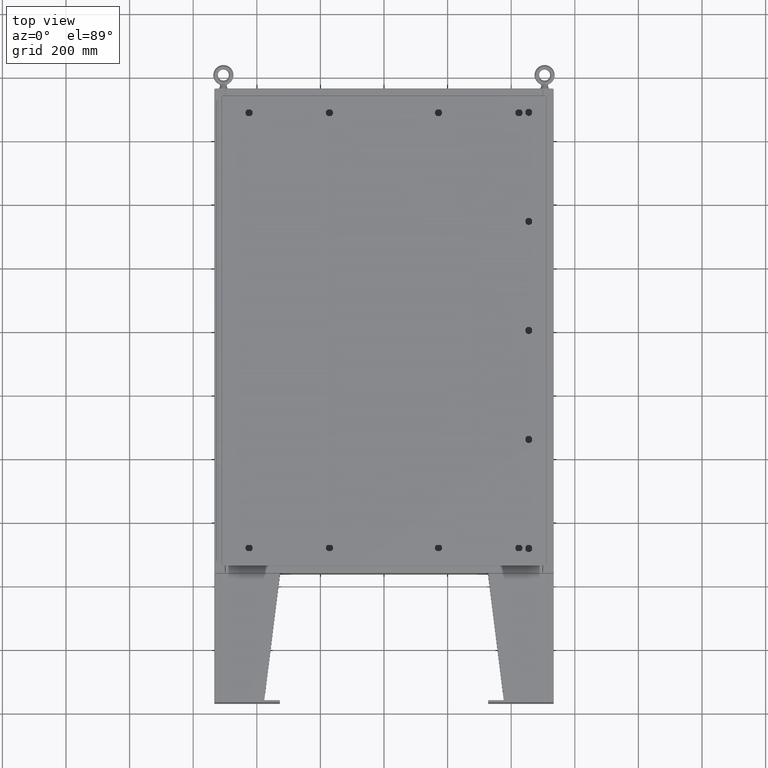
[diagram: clean part render]
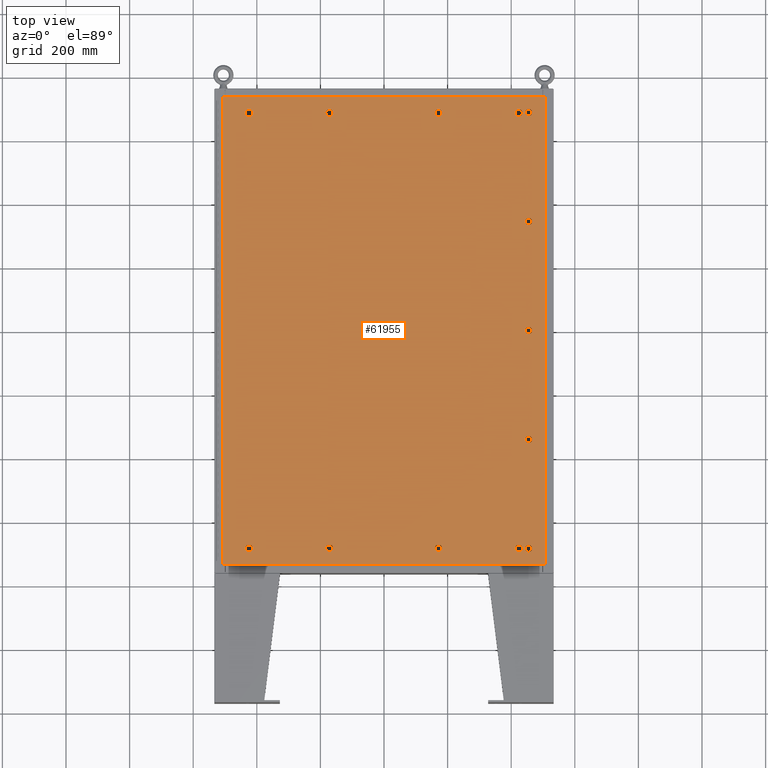
[diagram: same view with one face highlighted and labeled with its STEP entity id]
A machine part, top view. The second image highlights one B-rep face of the part: STEP entity #61955.
In plain terms, the highlighted planar face has unit normal (0, 0, -1).
Its self-contained STEP definition (entity closure, byte-faithful):
#31 = DIRECTION ( 'NONE',  ( 1.000000000000000000, 0.0000000000000000000, -6.982962677686286400E-015 ) ) ;
#73 = VECTOR ( 'NONE', #59801, 39.37007874015748100 ) ;
#134 = CARTESIAN_POINT ( 'NONE',  ( -6.550547624732094400, 27.33929999999999400, 0.0000000000000000000 ) ) ;
#354 = CIRCLE ( 'NONE', #49731, 0.4424999999999972800 ) ;
#451 = CARTESIAN_POINT ( 'NONE',  ( -6.550547624732101500, 26.54930000000000600, 0.0000000000000000000 ) ) ;
#564 = VERTEX_POINT ( 'NONE', #9848 ) ;
#716 = AXIS2_PLACEMENT_3D ( 'NONE', #22207, #7557, #37631 ) ;
#793 = CARTESIAN_POINT ( 'NONE',  ( 17.92830000000001400, -13.50000000000001800, -9.426999614876466400E-014 ) ) ;
#848 = VERTEX_POINT ( 'NONE', #5395 ) ;
#951 = EDGE_CURVE ( 'NONE', #62832, #12803, #57757, .T. ) ;
#1049 = CARTESIAN_POINT ( 'NONE',  ( 16.50354762473211100, -26.54930000000000200, -7.914855633430561400E-015 ) ) ;
#1050 = FACE_BOUND ( 'NONE', #35290, .T. ) ;
#1119 = VERTEX_POINT ( 'NONE', #36354 ) ;
#1125 = EDGE_LOOP ( 'NONE', ( #43125, #59571, #39557, #12998 ) ) ;
#1366 = CARTESIAN_POINT ( 'NONE',  ( 16.90245237526787700, 26.54930000000001300, -2.442441496082410700E-013 ) ) ;
#1477 = LINE ( 'NONE', #48759, #51638 ) ;
#1686 = ORIENTED_EDGE ( 'NONE', *, *, #50633, .F. ) ;
#1808 = DIRECTION ( 'NONE',  ( 6.982962677686266700E-015, -0.0000000000000000000, 1.000000000000000000 ) ) ;
#1966 = EDGE_CURVE ( 'NONE', #42191, #13647, #47000, .T. ) ;
#1978 = CARTESIAN_POINT ( 'NONE',  ( -16.50354762473210700, -26.54930000000001700, -2.493734682567286400E-013 ) ) ;
#1998 = DIRECTION ( 'NONE',  ( 0.0000000000000000000, 0.0000000000000000000, 1.000000000000000000 ) ) ;
#2025 = CARTESIAN_POINT ( 'NONE',  ( 18.32330000000001400, -27.19945237526789600, -1.899327607900007900E-013 ) ) ;
#2268 = VERTEX_POINT ( 'NONE', #51708 ) ;
#2348 = DIRECTION ( 'NONE',  ( -1.000000000000000000, -0.0000000000000000000, -6.982962677686306200E-015 ) ) ;
#2470 = CARTESIAN_POINT ( 'NONE',  ( 18.32330000000000700, 0.1994523752679009100, 0.0000000000000000000 ) ) ;
#2684 = DIRECTION ( 'NONE',  ( 1.000000000000000000, -1.095739467627835000E-014, 6.982962677686171300E-015 ) ) ;
#2689 = CARTESIAN_POINT ( 'NONE',  ( -6.550547624732104200, -26.54930000000000200, -2.493734682567286900E-013 ) ) ;
#2694 = EDGE_CURVE ( 'NONE', #32877, #36378, #21070, .T. ) ;
#2735 = DIRECTION ( 'NONE',  ( 1.000000000000000000, 0.0000000000000000000, 6.982962677686287200E-015 ) ) ;
#2740 = LINE ( 'NONE', #23070, #39998 ) ;
#2799 = VERTEX_POINT ( 'NONE', #37909 ) ;
#2837 = CARTESIAN_POINT ( 'NONE',  ( -16.70299999999999600, 26.94430000000000200, 0.0000000000000000000 ) ) ;
#2915 = DIRECTION ( 'NONE',  ( 0.0000000000000000000, 1.000000000000000000, 6.982962677686270700E-015 ) ) ;
#3237 = AXIS2_PLACEMENT_3D ( 'NONE', #4733, #38786, #9599 ) ;
#3853 = ORIENTED_EDGE ( 'NONE', *, *, #60614, .F. ) ;
#3855 = VERTEX_POINT ( 'NONE', #33629 ) ;
#3858 = VERTEX_POINT ( 'NONE', #9414 ) ;
#3881 = CARTESIAN_POINT ( 'NONE',  ( 17.92830000000001100, 13.50000000000001800, 0.0000000000000000000 ) ) ;
#3895 = DIRECTION ( 'NONE',  ( -0.0000000000000000000, -6.982962677686266700E-015, 1.000000000000000000 ) ) ;
#3927 = CIRCLE ( 'NONE', #53049, 0.4424999999999983400 ) ;
#3962 = DIRECTION ( 'NONE',  ( 1.000000000000000000, 0.0000000000000000000, 6.982962677686271400E-015 ) ) ;
#3986 = DIRECTION ( 'NONE',  ( 1.000000000000000000, 0.0000000000000000000, 6.982962677686287200E-015 ) ) ;
#4075 = CARTESIAN_POINT ( 'NONE',  ( -16.50354762473209600, -27.33930000000000500, -2.548900087721006900E-013 ) ) ;
#4145 = DIRECTION ( 'NONE',  ( 1.000000000000000000, 0.0000000000000000000, 0.0000000000000000000 ) ) ;
#4268 = EDGE_CURVE ( 'NONE', #27062, #49791, #46050, .T. ) ;
#4331 = AXIS2_PLACEMENT_3D ( 'NONE', #37043, #7891, #41941 ) ;
#4384 = ORIENTED_EDGE ( 'NONE', *, *, #6686, .F. ) ;
#4436 = DIRECTION ( 'NONE',  ( 1.000000000000000000, -1.095739467627832000E-014, 6.982962677686152300E-015 ) ) ;
#4647 = CIRCLE ( 'NONE', #61645, 0.4424999999999972800 ) ;
#4654 = CARTESIAN_POINT ( 'NONE',  ( -6.550547624732095300, 27.33929999999999400, 0.0000000000000000000 ) ) ;
#4682 = ORIENTED_EDGE ( 'NONE', *, *, #55266, .F. ) ;
#4733 = CARTESIAN_POINT ( 'NONE',  ( 17.92830000000001800, -27.00000000000001400, -1.885399922975292500E-013 ) ) ;
#4863 = ORIENTED_EDGE ( 'NONE', *, *, #26304, .F. ) ;
#4882 = CARTESIAN_POINT ( 'NONE',  ( -6.550547624732104200, -26.54930000000000200, -2.493734682567286900E-013 ) ) ;
#5322 = VECTOR ( 'NONE', #4436, 39.37007874015748100 ) ;
#5352 = VERTEX_POINT ( 'NONE', #23470 ) ;
#5395 = CARTESIAN_POINT ( 'NONE',  ( -6.949452375267867400, 27.33930000000000100, 0.0000000000000000000 ) ) ;
#5593 = DIRECTION ( 'NONE',  ( 0.0000000000000000000, 1.000000000000000000, 6.982962677686270700E-015 ) ) ;
#5712 = CARTESIAN_POINT ( 'NONE',  ( 18.32330000000000700, 13.69945237526790100, 0.0000000000000000000 ) ) ;
#5721 = ORIENTED_EDGE ( 'NONE', *, *, #55268, .F. ) ;
#5820 = CIRCLE ( 'NONE', #3237, 0.4424999999999983400 ) ;
#5998 = VECTOR ( 'NONE', #17151, 39.37007874015748100 ) ;
#6056 = CIRCLE ( 'NONE', #9088, 0.4424999999999972800 ) ;
#6201 = CARTESIAN_POINT ( 'NONE',  ( 16.50354762473211100, -26.54930000000000200, -7.914855633430561400E-015 ) ) ;
#6373 = EDGE_CURVE ( 'NONE', #15367, #3855, #60715, .T. ) ;
#6390 = CARTESIAN_POINT ( 'NONE',  ( -16.90245237526787400, -26.54930000000001700, -2.493734682567285900E-013 ) ) ;
#6521 = EDGE_CURVE ( 'NONE', #3855, #2799, #37093, .T. ) ;
#6637 = LINE ( 'NONE', #2689, #42433 ) ;
#6686 = EDGE_CURVE ( 'NONE', #8292, #19901, #16469, .T. ) ;
#6689 = AXIS2_PLACEMENT_3D ( 'NONE', #13486, #52058, #46570 ) ;
#7187 = EDGE_LOOP ( 'NONE', ( #35276, #55929, #39106, #48168, #7913 ) ) ;
#7334 = ORIENTED_EDGE ( 'NONE', *, *, #6521, .F. ) ;
#7370 = VERTEX_POINT ( 'NONE', #5712 ) ;
#7512 = CIRCLE ( 'NONE', #42924, 0.4424999999999983400 ) ;
#7557 = DIRECTION ( 'NONE',  ( -6.982962677686266700E-015, -6.982962677686266700E-015, 1.000000000000000000 ) ) ;
#7605 = AXIS2_PLACEMENT_3D ( 'NONE', #61094, #51493, #22315 ) ;
#7695 = DIRECTION ( 'NONE',  ( 1.000000000000000000, 0.0000000000000000000, 0.0000000000000000000 ) ) ;
#7800 = CARTESIAN_POINT ( 'NONE',  ( -19.99030000000001600, -29.00629999999999600, 1.946441695485787500E-015 ) ) ;
#7807 = VERTEX_POINT ( 'NONE', #13652 ) ;
#7821 = CARTESIAN_POINT ( 'NONE',  ( 17.53330000000001500, 26.80054762473213300, 0.0000000000000000000 ) ) ;
#7891 = DIRECTION ( 'NONE',  ( 6.982962677686266700E-015, -0.0000000000000000000, 1.000000000000000000 ) ) ;
#7913 = ORIENTED_EDGE ( 'NONE', *, *, #61966, .F. ) ;
#7926 = EDGE_CURVE ( 'NONE', #28776, #11582, #35377, .T. ) ;
#8030 = EDGE_CURVE ( 'NONE', #12054, #32877, #40705, .T. ) ;
#8167 = EDGE_CURVE ( 'NONE', #40309, #61084, #57408, .T. ) ;
#8187 = VERTEX_POINT ( 'NONE', #2470 ) ;
#8292 = VERTEX_POINT ( 'NONE', #55355 ) ;
#8302 = LINE ( 'NONE', #134, #19703 ) ;
#8472 = CARTESIAN_POINT ( 'NONE',  ( -6.949452375267869200, -27.33929999999999400, 0.0000000000000000000 ) ) ;
#8519 = VECTOR ( 'NONE', #43911, 39.37007874015748100 ) ;
#8569 = EDGE_LOOP ( 'NONE', ( #44231, #60132, #60616, #8687, #50456 ) ) ;
#8620 = DIRECTION ( 'NONE',  ( 6.982962677686266700E-015, -0.0000000000000000000, 1.000000000000000000 ) ) ;
#8627 = EDGE_CURVE ( 'NONE', #12122, #3858, #8638, .T. ) ;
#8638 = LINE ( 'NONE', #25091, #32981 ) ;
#8687 = ORIENTED_EDGE ( 'NONE', *, *, #59174, .F. ) ;
#8738 = DIRECTION ( 'NONE',  ( 1.000000000000000000, 0.0000000000000000000, 0.0000000000000000000 ) ) ;
#8776 = CARTESIAN_POINT ( 'NONE',  ( 17.53330000000002200, 13.69945237526790600, 0.0000000000000000000 ) ) ;
#8802 = DIRECTION ( 'NONE',  ( -1.000000000000000000, -0.0000000000000000000, -6.982962677686265900E-015 ) ) ;
#8859 = ORIENTED_EDGE ( 'NONE', *, *, #56245, .F. ) ;
#8874 = CARTESIAN_POINT ( 'NONE',  ( -6.749999999999985800, 26.94430000000000200, 0.0000000000000000000 ) ) ;
#9088 = AXIS2_PLACEMENT_3D ( 'NONE', #39620, #10446, #44537 ) ;
#9335 = EDGE_CURVE ( 'NONE', #34380, #26029, #30611, .T. ) ;
#9414 = CARTESIAN_POINT ( 'NONE',  ( -19.99030000000001600, 29.00630000000000700, 8.485802830319618300E-015 ) ) ;
#9469 = EDGE_CURVE ( 'NONE', #59648, #19207, #21433, .T. ) ;
#9599 = DIRECTION ( 'NONE',  ( 0.0000000000000000000, 1.000000000000000000, 6.982962677686270700E-015 ) ) ;
#9785 = CARTESIAN_POINT ( 'NONE',  ( 18.32330000000001000, -13.69945237526790100, -9.566276464123617700E-014 ) ) ;
#9848 = CARTESIAN_POINT ( 'NONE',  ( 17.14549999999999100, -26.94429999999999800, -6.190396413768948300E-015 ) ) ;
#10222 = VECTOR ( 'NONE', #46797, 39.37007874015748100 ) ;
#10270 = CIRCLE ( 'NONE', #21499, 0.4424999999999983400 ) ;
#10295 = CIRCLE ( 'NONE', #41715, 0.4424999999999983400 ) ;
#10338 = EDGE_CURVE ( 'NONE', #52823, #27134, #40400, .T. ) ;
#10446 = DIRECTION ( 'NONE',  ( 0.0000000000000000000, 0.0000000000000000000, 1.000000000000000000 ) ) ;
#10645 = CIRCLE ( 'NONE', #33852, 0.4424999999999983400 ) ;
#10837 = FACE_BOUND ( 'NONE', #13703, .T. ) ;
#10909 = ORIENTED_EDGE ( 'NONE', *, *, #31318, .F. ) ;
#11216 = EDGE_CURVE ( 'NONE', #51626, #62779, #44898, .T. ) ;
#11512 = CARTESIAN_POINT ( 'NONE',  ( 17.53330000000002200, -13.69945237526790600, -9.566276464123621500E-014 ) ) ;
#11582 = VERTEX_POINT ( 'NONE', #1049 ) ;
#11735 = VERTEX_POINT ( 'NONE', #7821 ) ;
#11876 = LINE ( 'NONE', #47650, #23273 ) ;
#11944 = AXIS2_PLACEMENT_3D ( 'NONE', #31095, #1998, #36017 ) ;
#11957 = EDGE_LOOP ( 'NONE', ( #17026, #23275, #38411, #29812 ) ) ;
#12054 = VERTEX_POINT ( 'NONE', #57978 ) ;
#12122 = VERTEX_POINT ( 'NONE', #30512 ) ;
#12355 = FACE_BOUND ( 'NONE', #14223, .T. ) ;
#12628 = VERTEX_POINT ( 'NONE', #2025 ) ;
#12803 = VERTEX_POINT ( 'NONE', #13012 ) ;
#12856 = ORIENTED_EDGE ( 'NONE', *, *, #53538, .F. ) ;
#12998 = ORIENTED_EDGE ( 'NONE', *, *, #25890, .F. ) ;
#13012 = CARTESIAN_POINT ( 'NONE',  ( 19.99030000000000100, -29.00629999999998900, 1.946441695485787500E-015 ) ) ;
#13016 = ORIENTED_EDGE ( 'NONE', *, *, #951, .T. ) ;
#13045 = VERTEX_POINT ( 'NONE', #30114 ) ;
#13060 = DIRECTION ( 'NONE',  ( 0.0000000000000000000, 1.000000000000000000, 0.0000000000000000000 ) ) ;
#13180 = EDGE_LOOP ( 'NONE', ( #29881, #42140, #4863, #7334 ) ) ;
#13196 = CARTESIAN_POINT ( 'NONE',  ( 16.90245237526787700, -26.54930000000000200, 0.0000000000000000000 ) ) ;
#13210 = EDGE_CURVE ( 'NONE', #36378, #7370, #52548, .T. ) ;
#13390 = AXIS2_PLACEMENT_3D ( 'NONE', #38799, #14182, #39835 ) ;
#13471 = CARTESIAN_POINT ( 'NONE',  ( -6.307499999999988600, 26.94430000000000200, 0.0000000000000000000 ) ) ;
#13486 = CARTESIAN_POINT ( 'NONE',  ( -6.749999999999987600, -26.94429999999999800, -2.521317385144146900E-013 ) ) ;
#13636 = AXIS2_PLACEMENT_3D ( 'NONE', #37762, #8620, #42669 ) ;
#13647 = VERTEX_POINT ( 'NONE', #54728 ) ;
#13652 = CARTESIAN_POINT ( 'NONE',  ( 16.50354762473210000, 27.33930000000000100, -2.414586126232980000E-013 ) ) ;
#13703 = EDGE_LOOP ( 'NONE', ( #14204, #15776, #59709, #60749, #42330 ) ) ;
#13788 = DIRECTION ( 'NONE',  ( 1.000000000000000000, 0.0000000000000000000, 0.0000000000000000000 ) ) ;
#13796 = LINE ( 'NONE', #451, #62523 ) ;
#13869 = VERTEX_POINT ( 'NONE', #27550 ) ;
#13899 = FACE_BOUND ( 'NONE', #46470, .T. ) ;
#14065 = EDGE_LOOP ( 'NONE', ( #53230, #31671, #30118, #21475, #29088 ) ) ;
#14182 = DIRECTION ( 'NONE',  ( 6.982962677686266700E-015, -0.0000000000000000000, 1.000000000000000000 ) ) ;
#14204 = ORIENTED_EDGE ( 'NONE', *, *, #26970, .F. ) ;
#14223 = EDGE_LOOP ( 'NONE', ( #52039, #54199, #12856, #1686, #4682 ) ) ;
#14327 = CARTESIAN_POINT ( 'NONE',  ( 17.53330000000001500, 13.30054762473213400, 0.0000000000000000000 ) ) ;
#14698 = CIRCLE ( 'NONE', #52874, 0.4424999999999961700 ) ;
#15061 = CARTESIAN_POINT ( 'NONE',  ( 17.92830000000001100, 1.529834876451990400E-014, 0.0000000000000000000 ) ) ;
#15197 = ORIENTED_EDGE ( 'NONE', *, *, #13210, .F. ) ;
#15271 = CARTESIAN_POINT ( 'NONE',  ( -16.26049999999999700, 26.94430000000000200, 0.0000000000000000000 ) ) ;
#15298 = VERTEX_POINT ( 'NONE', #27766 ) ;
#15367 = VERTEX_POINT ( 'NONE', #21593 ) ;
#15388 = VERTEX_POINT ( 'NONE', #4654 ) ;
#15398 = VERTEX_POINT ( 'NONE', #29716 ) ;
#15410 = FACE_BOUND ( 'NONE', #1125, .T. ) ;
#15515 = VERTEX_POINT ( 'NONE', #32740 ) ;
#15623 = DIRECTION ( 'NONE',  ( 0.0000000000000000000, 0.0000000000000000000, 1.000000000000000000 ) ) ;
#15741 = CIRCLE ( 'NONE', #716, 0.4424999999999983400 ) ;
#15776 = ORIENTED_EDGE ( 'NONE', *, *, #51635, .F. ) ;
#15785 = AXIS2_PLACEMENT_3D ( 'NONE', #27240, #43215, #21768 ) ;
#15833 = ORIENTED_EDGE ( 'NONE', *, *, #46270, .F. ) ;
#15898 = EDGE_CURVE ( 'NONE', #564, #28776, #33272, .T. ) ;
#15962 = EDGE_CURVE ( 'NONE', #11582, #16928, #15741, .T. ) ;
#15970 = VERTEX_POINT ( 'NONE', #35894 ) ;
#16268 = CARTESIAN_POINT ( 'NONE',  ( 16.70299999999999600, -26.94429999999999800, -9.280357398645096400E-015 ) ) ;
#16444 = CARTESIAN_POINT ( 'NONE',  ( -16.50354762473211100, 26.54930000000000600, 0.0000000000000000000 ) ) ;
#16469 = CIRCLE ( 'NONE', #6689, 0.4424999999999983400 ) ;
#16573 = DIRECTION ( 'NONE',  ( -1.000000000000000000, 0.0000000000000000000, 7.785697190086082800E-029 ) ) ;
#16699 = CIRCLE ( 'NONE', #21449, 0.4424999999999983400 ) ;
#16822 = EDGE_CURVE ( 'NONE', #8187, #19752, #47657, .T. ) ;
#16928 = VERTEX_POINT ( 'NONE', #53358 ) ;
#17009 = CARTESIAN_POINT ( 'NONE',  ( 6.550547624732101500, 26.54930000000000600, -4.574222958191072400E-014 ) ) ;
#17026 = ORIENTED_EDGE ( 'NONE', *, *, #36077, .F. ) ;
#17036 = EDGE_CURVE ( 'NONE', #12803, #12122, #23979, .T. ) ;
#17104 = DIRECTION ( 'NONE',  ( 0.0000000000000000000, 1.000000000000000000, 6.982962677686270700E-015 ) ) ;
#17151 = DIRECTION ( 'NONE',  ( 1.000000000000000000, -0.0000000000000000000, -0.0000000000000000000 ) ) ;
#17251 = EDGE_CURVE ( 'NONE', #49131, #2268, #10270, .T. ) ;
#17305 = ORIENTED_EDGE ( 'NONE', *, *, #53329, .T. ) ;
#17571 = EDGE_CURVE ( 'NONE', #11735, #15367, #58190, .T. ) ;
#17576 = VECTOR ( 'NONE', #16573, 39.37007874015748100 ) ;
#17643 = VECTOR ( 'NONE', #8802, 39.37007874015748100 ) ;
#17795 = ORIENTED_EDGE ( 'NONE', *, *, #46749, .F. ) ;
#17891 = ORIENTED_EDGE ( 'NONE', *, *, #8030, .F. ) ;
#17971 = DIRECTION ( 'NONE',  ( -0.0000000000000000000, -6.982962677686266700E-015, 1.000000000000000000 ) ) ;
#17980 = CARTESIAN_POINT ( 'NONE',  ( 17.92830000000001800, -27.00000000000001400, -1.885399922975292500E-013 ) ) ;
#18120 = DIRECTION ( 'NONE',  ( 1.000000000000000000, 0.0000000000000000000, 0.0000000000000000000 ) ) ;
#18155 = EDGE_CURVE ( 'NONE', #15970, #47408, #50536, .T. ) ;
#18465 = DIRECTION ( 'NONE',  ( 0.0000000000000000000, 0.0000000000000000000, 1.000000000000000000 ) ) ;
#18856 = CARTESIAN_POINT ( 'NONE',  ( 19.99030000000000100, -29.00629999999998900, 1.946441695485787500E-015 ) ) ;
#19207 = VERTEX_POINT ( 'NONE', #42318 ) ;
#19494 = CARTESIAN_POINT ( 'NONE',  ( 17.53330000000002200, 27.19945237526790300, 0.0000000000000000000 ) ) ;
#19703 = VECTOR ( 'NONE', #43191, 39.37007874015748100 ) ;
#19752 = VERTEX_POINT ( 'NONE', #50363 ) ;
#19901 = VERTEX_POINT ( 'NONE', #21531 ) ;
#19909 = LINE ( 'NONE', #38995, #29782 ) ;
#20214 = CARTESIAN_POINT ( 'NONE',  ( 18.32330000000000700, 27.19945237526789600, 0.0000000000000000000 ) ) ;
#20243 = DIRECTION ( 'NONE',  ( -1.095739467627836100E-014, -1.000000000000000000, 0.0000000000000000000 ) ) ;
#20608 = CARTESIAN_POINT ( 'NONE',  ( -6.550547624732096200, -27.33929999999999100, -2.548900087721007400E-013 ) ) ;
#20832 = EDGE_CURVE ( 'NONE', #19901, #53764, #37508, .T. ) ;
#20878 = ORIENTED_EDGE ( 'NONE', *, *, #17036, .T. ) ;
#21025 = CARTESIAN_POINT ( 'NONE',  ( -16.90245237526787700, 26.54930000000000600, 0.0000000000000000000 ) ) ;
#21070 = CIRCLE ( 'NONE', #25217, 0.4424999999999983400 ) ;
#21433 = LINE ( 'NONE', #9785, #8519 ) ;
#21442 = EDGE_CURVE ( 'NONE', #60164, #564, #47336, .T. ) ;
#21449 = AXIS2_PLACEMENT_3D ( 'NONE', #793, #34731, #5593 ) ;
#21475 = ORIENTED_EDGE ( 'NONE', *, *, #27828, .F. ) ;
#21499 = AXIS2_PLACEMENT_3D ( 'NONE', #55459, #32965, #62428 ) ;
#21531 = CARTESIAN_POINT ( 'NONE',  ( -6.307499999999990300, -26.94429999999999800, -2.521317385144146900E-013 ) ) ;
#21544 = EDGE_CURVE ( 'NONE', #53498, #13869, #3927, .T. ) ;
#21593 = CARTESIAN_POINT ( 'NONE',  ( 18.32330000000001000, 26.80054762473213300, 0.0000000000000000000 ) ) ;
#21679 = EDGE_CURVE ( 'NONE', #59891, #25282, #61007, .T. ) ;
#21768 = DIRECTION ( 'NONE',  ( -1.000000000000000000, 0.0000000000000000000, 6.982962677686304600E-015 ) ) ;
#21845 = EDGE_CURVE ( 'NONE', #26029, #38044, #4647, .T. ) ;
#22071 = CIRCLE ( 'NONE', #56557, 0.4424999999999961700 ) ;
#22127 = CARTESIAN_POINT ( 'NONE',  ( 16.50354762473211100, 26.54930000000001300, -2.414586126232981000E-013 ) ) ;
#22136 = VECTOR ( 'NONE', #49052, 39.37007874015748100 ) ;
#22154 = LINE ( 'NONE', #1978, #17576 ) ;
#22207 = CARTESIAN_POINT ( 'NONE',  ( 16.70299999999999600, -26.94429999999999800, -9.280357398645096400E-015 ) ) ;
#22313 = CARTESIAN_POINT ( 'NONE',  ( 18.32330000000001000, 13.30054762473213300, 0.0000000000000000000 ) ) ;
#22315 = DIRECTION ( 'NONE',  ( -1.000000000000000000, 0.0000000000000000000, -0.0000000000000000000 ) ) ;
#22419 = CARTESIAN_POINT ( 'NONE',  ( 16.50354762473210000, -27.33929999999999100, -1.343139614880267800E-014 ) ) ;
#22456 = CARTESIAN_POINT ( 'NONE',  ( -19.99030000000001600, -29.00629999999999600, 1.946441695485787500E-015 ) ) ;
#22475 = DIRECTION ( 'NONE',  ( 1.000000000000000000, 0.0000000000000000000, 0.0000000000000000000 ) ) ;
#22896 = DIRECTION ( 'NONE',  ( 0.0000000000000000000, 1.000000000000000000, 6.982962677686270700E-015 ) ) ;
#23070 = CARTESIAN_POINT ( 'NONE',  ( 16.50354762473210000, 27.33930000000000100, -2.414586126232980000E-013 ) ) ;
#23173 = CARTESIAN_POINT ( 'NONE',  ( -16.70299999999999200, -26.94430000000000900, -2.521317385144146400E-013 ) ) ;
#23273 = VECTOR ( 'NONE', #23332, 39.37007874015748100 ) ;
#23275 = ORIENTED_EDGE ( 'NONE', *, *, #28823, .F. ) ;
#23332 = DIRECTION ( 'NONE',  ( -1.000000000000000000, -1.095739467627835000E-014, 6.982962677686269100E-015 ) ) ;
#23346 = VECTOR ( 'NONE', #53528, 39.37007874015748100 ) ;
#23470 = CARTESIAN_POINT ( 'NONE',  ( 6.949452375267867400, 27.33930000000000100, 0.0000000000000000000 ) ) ;
#23751 = FACE_BOUND ( 'NONE', #52615, .T. ) ;
#23839 = EDGE_CURVE ( 'NONE', #12628, #1119, #60771, .T. ) ;
#23923 = LINE ( 'NONE', #60941, #48348 ) ;
#23979 = LINE ( 'NONE', #18856, #56770 ) ;
#24019 = CARTESIAN_POINT ( 'NONE',  ( 6.550547624732104200, -26.54930000000000600, -2.036312386748179300E-013 ) ) ;
#24139 = CARTESIAN_POINT ( 'NONE',  ( 6.550547624732101500, 26.54930000000000600, -4.574222958191072400E-014 ) ) ;
#24558 = DIRECTION ( 'NONE',  ( 1.095739467627844000E-014, -1.000000000000000000, -6.982962677686306200E-015 ) ) ;
#24702 = CARTESIAN_POINT ( 'NONE',  ( 18.32330000000000700, 0.1994523752679009100, 0.0000000000000000000 ) ) ;
#24794 = LINE ( 'NONE', #24702, #36256 ) ;
#25091 = CARTESIAN_POINT ( 'NONE',  ( 19.99029999999999800, 29.00630000000001400, 1.946441695485787500E-015 ) ) ;
#25217 = AXIS2_PLACEMENT_3D ( 'NONE', #49082, #60547, #22475 ) ;
#25279 = AXIS2_PLACEMENT_3D ( 'NONE', #60994, #31832, #2735 ) ;
#25282 = VERTEX_POINT ( 'NONE', #11512 ) ;
#25285 = AXIS2_PLACEMENT_3D ( 'NONE', #30883, #1808, #35815 ) ;
#25305 = FACE_BOUND ( 'NONE', #14065, .T. ) ;
#25766 = CARTESIAN_POINT ( 'NONE',  ( 6.749999999999987600, -26.94430000000000200, -2.049967404400324900E-013 ) ) ;
#25837 = LINE ( 'NONE', #54938, #73 ) ;
#25890 = EDGE_CURVE ( 'NONE', #25282, #59648, #14698, .T. ) ;
#26029 = VERTEX_POINT ( 'NONE', #24019 ) ;
#26124 = AXIS2_PLACEMENT_3D ( 'NONE', #50241, #3895, #17104 ) ;
#26130 = ORIENTED_EDGE ( 'NONE', *, *, #21845, .F. ) ;
#26195 = CARTESIAN_POINT ( 'NONE',  ( 17.92830000000001100, 27.00000000000001400, 0.0000000000000000000 ) ) ;
#26304 = EDGE_CURVE ( 'NONE', #2799, #11735, #42077, .T. ) ;
#26373 = CARTESIAN_POINT ( 'NONE',  ( 17.53330000000001500, -0.1994523752678671000, 0.0000000000000000000 ) ) ;
#26619 = CIRCLE ( 'NONE', #61193, 0.4424999999999961700 ) ;
#26939 = AXIS2_PLACEMENT_3D ( 'NONE', #30279, #37504, #3962 ) ;
#26970 = EDGE_CURVE ( 'NONE', #60997, #15298, #13796, .T. ) ;
#27062 = VERTEX_POINT ( 'NONE', #21025 ) ;
#27134 = VERTEX_POINT ( 'NONE', #8472 ) ;
#27187 = EDGE_CURVE ( 'NONE', #27134, #8292, #35110, .T. ) ;
#27191 = AXIS2_PLACEMENT_3D ( 'NONE', #15061, #61171, #18120 ) ;
#27240 = CARTESIAN_POINT ( 'NONE',  ( 16.70299999999999600, 26.94430000000000500, -2.428513811157696100E-013 ) ) ;
#27246 = DIRECTION ( 'NONE',  ( -1.000000000000000000, -0.0000000000000000000, -0.0000000000000000000 ) ) ;
#27494 = ORIENTED_EDGE ( 'NONE', *, *, #39710, .F. ) ;
#27550 = CARTESIAN_POINT ( 'NONE',  ( -16.90245237526787000, -27.33930000000000900, 0.0000000000000000000 ) ) ;
#27766 = CARTESIAN_POINT ( 'NONE',  ( -6.550547624732101500, 26.54930000000000600, 0.0000000000000000000 ) ) ;
#27828 = EDGE_CURVE ( 'NONE', #16928, #60164, #31204, .T. ) ;
#28099 = DIRECTION ( 'NONE',  ( 0.0000000000000000000, 1.000000000000000000, 6.982962677686270700E-015 ) ) ;
#28101 = CARTESIAN_POINT ( 'NONE',  ( 17.92830000000001100, 27.00000000000001400, 0.0000000000000000000 ) ) ;
#28552 = EDGE_CURVE ( 'NONE', #47408, #5352, #32720, .T. ) ;
#28651 = DIRECTION ( 'NONE',  ( 1.000000000000000000, 0.0000000000000000000, 6.982962677686271400E-015 ) ) ;
#28677 = EDGE_CURVE ( 'NONE', #45746, #27062, #26619, .T. ) ;
#28776 = VERTEX_POINT ( 'NONE', #13196 ) ;
#28823 = EDGE_CURVE ( 'NONE', #59281, #15398, #10645, .T. ) ;
#28877 = DIRECTION ( 'NONE',  ( 6.982962677686266700E-015, -0.0000000000000000000, 1.000000000000000000 ) ) ;
#28962 = DIRECTION ( 'NONE',  ( -5.478697338139220100E-015, 1.000000000000000000, -0.0000000000000000000 ) ) ;
#29088 = ORIENTED_EDGE ( 'NONE', *, *, #15962, .F. ) ;
#29296 = LINE ( 'NONE', #30728, #56750 ) ;
#29354 = CARTESIAN_POINT ( 'NONE',  ( 17.92830000000001400, -13.50000000000001800, -9.426999614876466400E-014 ) ) ;
#29716 = CARTESIAN_POINT ( 'NONE',  ( 18.32330000000001400, -0.1994523752678676000, 0.0000000000000000000 ) ) ;
#29782 = VECTOR ( 'NONE', #53668, 39.37007874015748100 ) ;
#29812 = ORIENTED_EDGE ( 'NONE', *, *, #16822, .F. ) ;
#29881 = ORIENTED_EDGE ( 'NONE', *, *, #6373, .F. ) ;
#30114 = CARTESIAN_POINT ( 'NONE',  ( 6.550547624732095300, 27.33929999999999400, -4.574222958191068000E-014 ) ) ;
#30118 = ORIENTED_EDGE ( 'NONE', *, *, #21442, .F. ) ;
#30206 = DIRECTION ( 'NONE',  ( 1.000000000000000000, 0.0000000000000000000, 0.0000000000000000000 ) ) ;
#30279 = CARTESIAN_POINT ( 'NONE',  ( 16.70299999999999600, -26.94429999999999800, -9.280357398645096400E-015 ) ) ;
#30512 = CARTESIAN_POINT ( 'NONE',  ( 19.99029999999999800, 29.00630000000001400, 1.946441695485787500E-015 ) ) ;
#30611 = LINE ( 'NONE', #32850, #17643 ) ;
#30728 = CARTESIAN_POINT ( 'NONE',  ( -16.50354762473210000, 27.33929999999999400, 0.0000000000000000000 ) ) ;
#30883 = CARTESIAN_POINT ( 'NONE',  ( 6.749999999999985800, 26.94430000000000200, -4.713499807438223100E-014 ) ) ;
#31095 = CARTESIAN_POINT ( 'NONE',  ( -6.749999999999985800, 26.94430000000000200, 0.0000000000000000000 ) ) ;
#31204 = LINE ( 'NONE', #22419, #5322 ) ;
#31318 = EDGE_CURVE ( 'NONE', #61084, #12628, #52168, .T. ) ;
#31623 = CARTESIAN_POINT ( 'NONE',  ( 7.192499999999984800, -26.94430000000000200, -2.019067794551563100E-013 ) ) ;
#31671 = ORIENTED_EDGE ( 'NONE', *, *, #15898, .F. ) ;
#31832 = DIRECTION ( 'NONE',  ( -6.982962677686266700E-015, -6.982962677686266700E-015, 1.000000000000000000 ) ) ;
#31836 = CARTESIAN_POINT ( 'NONE',  ( 6.949452375267871900, -26.54930000000000600, 0.0000000000000000000 ) ) ;
#32013 = DIRECTION ( 'NONE',  ( -0.0000000000000000000, -6.982962677686266700E-015, 1.000000000000000000 ) ) ;
#32233 = DIRECTION ( 'NONE',  ( 0.0000000000000000000, 0.0000000000000000000, 1.000000000000000000 ) ) ;
#32720 = CIRCLE ( 'NONE', #25285, 0.4424999999999972800 ) ;
#32727 = CARTESIAN_POINT ( 'NONE',  ( 18.32330000000001000, -13.69945237526790100, -9.566276464123617700E-014 ) ) ;
#32740 = CARTESIAN_POINT ( 'NONE',  ( -16.50354762473210700, -26.54930000000001700, -2.493734682567286400E-013 ) ) ;
#32850 = CARTESIAN_POINT ( 'NONE',  ( 6.550547624732104200, -26.54930000000000600, -2.036312386748179300E-013 ) ) ;
#32877 = VERTEX_POINT ( 'NONE', #14327 ) ;
#32965 = DIRECTION ( 'NONE',  ( 0.0000000000000000000, 0.0000000000000000000, 1.000000000000000000 ) ) ;
#32981 = VECTOR ( 'NONE', #27246, 39.37007874015748100 ) ;
#33262 = DIRECTION ( 'NONE',  ( 0.0000000000000000000, 0.0000000000000000000, 1.000000000000000000 ) ) ;
#33272 = CIRCLE ( 'NONE', #57280, 0.4424999999999961700 ) ;
#33342 = CIRCLE ( 'NONE', #53736, 0.4424999999999961700 ) ;
#33369 = CIRCLE ( 'NONE', #25279, 0.4424999999999972800 ) ;
#33578 = DIRECTION ( 'NONE',  ( -0.0000000000000000000, -6.982962677686266700E-015, 1.000000000000000000 ) ) ;
#33629 = CARTESIAN_POINT ( 'NONE',  ( 18.32330000000000700, 27.19945237526789600, 0.0000000000000000000 ) ) ;
#33651 = EDGE_LOOP ( 'NONE', ( #13016, #20878, #58883, #17305 ) ) ;
#33756 = VERTEX_POINT ( 'NONE', #45744 ) ;
#33852 = AXIS2_PLACEMENT_3D ( 'NONE', #47675, #18465, #52535 ) ;
#34380 = VERTEX_POINT ( 'NONE', #31836 ) ;
#34616 = CARTESIAN_POINT ( 'NONE',  ( 18.32330000000000700, 13.69945237526790100, 0.0000000000000000000 ) ) ;
#34731 = DIRECTION ( 'NONE',  ( -0.0000000000000000000, -6.982962677686266700E-015, 1.000000000000000000 ) ) ;
#34860 = VECTOR ( 'NONE', #20243, 39.37007874015748100 ) ;
#34861 = VECTOR ( 'NONE', #58376, 39.37007874015748100 ) ;
#35110 = LINE ( 'NONE', #20608, #40422 ) ;
#35202 = CIRCLE ( 'NONE', #4331, 0.4424999999999972800 ) ;
#35230 = ORIENTED_EDGE ( 'NONE', *, *, #2694, .F. ) ;
#35276 = ORIENTED_EDGE ( 'NONE', *, *, #48860, .F. ) ;
#35290 = EDGE_LOOP ( 'NONE', ( #51100, #8859, #61823, #10909 ) ) ;
#35377 = LINE ( 'NONE', #6201, #59743 ) ;
#35815 = DIRECTION ( 'NONE',  ( -1.000000000000000000, 0.0000000000000000000, 6.982962677686251700E-015 ) ) ;
#35839 = CARTESIAN_POINT ( 'NONE',  ( -16.70299999999999200, -26.94430000000000900, -2.521317385144146400E-013 ) ) ;
#35894 = CARTESIAN_POINT ( 'NONE',  ( 6.949452375267869200, 26.54930000000000600, -4.852776656685374400E-014 ) ) ;
#36017 = DIRECTION ( 'NONE',  ( 1.000000000000000000, 0.0000000000000000000, 0.0000000000000000000 ) ) ;
#36077 = EDGE_CURVE ( 'NONE', #15398, #8187, #24794, .T. ) ;
#36242 = CARTESIAN_POINT ( 'NONE',  ( 6.550547624732098000, -27.33929999999999400, -2.091477791901900500E-013 ) ) ;
#36256 = VECTOR ( 'NONE', #53889, 39.37007874015748100 ) ;
#36266 = VERTEX_POINT ( 'NONE', #55794 ) ;
#36318 = VERTEX_POINT ( 'NONE', #17009 ) ;
#36354 = CARTESIAN_POINT ( 'NONE',  ( 18.32330000000001400, -26.80054762473213300, -1.871472238050577400E-013 ) ) ;
#36378 = VERTEX_POINT ( 'NONE', #22313 ) ;
#36755 = FACE_BOUND ( 'NONE', #8569, .T. ) ;
#36858 = DIRECTION ( 'NONE',  ( 0.0000000000000000000, 0.0000000000000000000, 1.000000000000000000 ) ) ;
#37043 = CARTESIAN_POINT ( 'NONE',  ( 6.749999999999985800, 26.94430000000000200, -4.713499807438223100E-014 ) ) ;
#37093 = CIRCLE ( 'NONE', #37295, 0.4424999999999961700 ) ;
#37295 = AXIS2_PLACEMENT_3D ( 'NONE', #28101, #32233, #30206 ) ;
#37504 = DIRECTION ( 'NONE',  ( -6.982962677686266700E-015, -6.982962677686266700E-015, 1.000000000000000000 ) ) ;
#37508 = CIRCLE ( 'NONE', #26124, 0.4424999999999983400 ) ;
#37520 = CARTESIAN_POINT ( 'NONE',  ( 17.53330000000002500, -27.19945237526790300, -1.899327607900008200E-013 ) ) ;
#37631 = DIRECTION ( 'NONE',  ( 1.000000000000000000, 0.0000000000000000000, 6.982962677686261200E-015 ) ) ;
#37762 = CARTESIAN_POINT ( 'NONE',  ( 16.70299999999999600, 26.94430000000000500, -2.428513811157696100E-013 ) ) ;
#37826 = DIRECTION ( 'NONE',  ( -1.095739467627844000E-014, -1.000000000000000000, 0.0000000000000000000 ) ) ;
#37846 = EDGE_LOOP ( 'NONE', ( #43492, #56329, #54978, #55700, #4384 ) ) ;
#37906 = DIRECTION ( 'NONE',  ( 0.0000000000000000000, 0.0000000000000000000, 1.000000000000000000 ) ) ;
#37909 = CARTESIAN_POINT ( 'NONE',  ( 17.53330000000002200, 27.19945237526790300, 0.0000000000000000000 ) ) ;
#37925 = LINE ( 'NONE', #24139, #62274 ) ;
#38044 = VERTEX_POINT ( 'NONE', #36242 ) ;
#38119 = CARTESIAN_POINT ( 'NONE',  ( 17.53330000000002200, -26.80054762473213300, 0.0000000000000000000 ) ) ;
#38273 = FACE_BOUND ( 'NONE', #61681, .T. ) ;
#38411 = ORIENTED_EDGE ( 'NONE', *, *, #50992, .F. ) ;
#38579 = VERTEX_POINT ( 'NONE', #22127 ) ;
#38786 = DIRECTION ( 'NONE',  ( -0.0000000000000000000, -6.982962677686266700E-015, 1.000000000000000000 ) ) ;
#38799 = CARTESIAN_POINT ( 'NONE',  ( 6.749999999999985800, 26.94430000000000200, -4.713499807438223100E-014 ) ) ;
#38829 = ORIENTED_EDGE ( 'NONE', *, *, #11216, .F. ) ;
#38941 = DIRECTION ( 'NONE',  ( -1.095739467627838000E-014, -1.000000000000000000, 0.0000000000000000000 ) ) ;
#38995 = CARTESIAN_POINT ( 'NONE',  ( -19.99030000000001600, 29.00630000000000700, 8.485802830319618300E-015 ) ) ;
#39106 = ORIENTED_EDGE ( 'NONE', *, *, #18155, .F. ) ;
#39557 = ORIENTED_EDGE ( 'NONE', *, *, #9469, .F. ) ;
#39620 = CARTESIAN_POINT ( 'NONE',  ( -6.749999999999985800, 26.94430000000000200, 0.0000000000000000000 ) ) ;
#39710 = EDGE_CURVE ( 'NONE', #49791, #49131, #10295, .T. ) ;
#39789 = FACE_BOUND ( 'NONE', #13180, .T. ) ;
#39835 = DIRECTION ( 'NONE',  ( -1.000000000000000000, 0.0000000000000000000, 6.982962677686251700E-015 ) ) ;
#39879 = DIRECTION ( 'NONE',  ( 1.000000000000000000, 0.0000000000000000000, 6.982962677686287200E-015 ) ) ;
#39998 = VECTOR ( 'NONE', #47180, 39.37007874015748100 ) ;
#40103 = DIRECTION ( 'NONE',  ( 0.0000000000000000000, 1.000000000000000000, 6.982962677686270700E-015 ) ) ;
#40292 = DIRECTION ( 'NONE',  ( 0.0000000000000000000, 1.000000000000000000, 6.982962677686270700E-015 ) ) ;
#40309 = VERTEX_POINT ( 'NONE', #38119 ) ;
#40400 = CIRCLE ( 'NONE', #61509, 0.4424999999999983400 ) ;
#40422 = VECTOR ( 'NONE', #58865, 39.37007874015748100 ) ;
#40546 = VECTOR ( 'NONE', #37826, 39.37007874015748100 ) ;
#40705 = LINE ( 'NONE', #8776, #55185 ) ;
#41478 = EDGE_CURVE ( 'NONE', #7807, #38579, #56567, .T. ) ;
#41715 = AXIS2_PLACEMENT_3D ( 'NONE', #62451, #33262, #4145 ) ;
#41821 = DIRECTION ( 'NONE',  ( 1.000000000000000000, -0.0000000000000000000, -0.0000000000000000000 ) ) ;
#41941 = DIRECTION ( 'NONE',  ( -1.000000000000000000, 0.0000000000000000000, 6.982962677686269100E-015 ) ) ;
#42016 = DIRECTION ( 'NONE',  ( 1.000000000000000000, 0.0000000000000000000, 0.0000000000000000000 ) ) ;
#42077 = LINE ( 'NONE', #19494, #40546 ) ;
#42140 = ORIENTED_EDGE ( 'NONE', *, *, #17571, .F. ) ;
#42191 = VERTEX_POINT ( 'NONE', #1366 ) ;
#42318 = CARTESIAN_POINT ( 'NONE',  ( 18.32330000000001400, -13.30054762473213300, -9.287722765629316300E-014 ) ) ;
#42330 = ORIENTED_EDGE ( 'NONE', *, *, #56866, .F. ) ;
#42433 = VECTOR ( 'NONE', #51156, 39.37007874015748100 ) ;
#42669 = DIRECTION ( 'NONE',  ( -1.000000000000000000, 0.0000000000000000000, 6.982962677686270700E-015 ) ) ;
#42856 = EDGE_CURVE ( 'NONE', #13647, #33756, #22071, .T. ) ;
#42924 = AXIS2_PLACEMENT_3D ( 'NONE', #61175, #32013, #2915 ) ;
#42945 = DIRECTION ( 'NONE',  ( 0.0000000000000000000, 0.0000000000000000000, 1.000000000000000000 ) ) ;
#43041 = ORIENTED_EDGE ( 'NONE', *, *, #9335, .F. ) ;
#43125 = ORIENTED_EDGE ( 'NONE', *, *, #21679, .F. ) ;
#43133 = EDGE_CURVE ( 'NONE', #19207, #59891, #16699, .T. ) ;
#43191 = DIRECTION ( 'NONE',  ( -1.000000000000000000, 1.095739467627835000E-014, 0.0000000000000000000 ) ) ;
#43215 = DIRECTION ( 'NONE',  ( 6.982962677686266700E-015, -0.0000000000000000000, 1.000000000000000000 ) ) ;
#43492 = ORIENTED_EDGE ( 'NONE', *, *, #27187, .F. ) ;
#43558 = CARTESIAN_POINT ( 'NONE',  ( -6.749999999999987600, -26.94429999999999800, -2.521317385144146900E-013 ) ) ;
#43837 = DIRECTION ( 'NONE',  ( 0.0000000000000000000, 1.000000000000000000, 6.982962677686269100E-015 ) ) ;
#43859 = EDGE_CURVE ( 'NONE', #13869, #55288, #1477, .T. ) ;
#43911 = DIRECTION ( 'NONE',  ( 5.478697338139220100E-015, 1.000000000000000000, 6.982962677686228100E-015 ) ) ;
#44068 = DIRECTION ( 'NONE',  ( 1.000000000000000000, 1.095739467627832000E-014, 7.785697190085955000E-029 ) ) ;
#44231 = ORIENTED_EDGE ( 'NONE', *, *, #49541, .F. ) ;
#44434 = ORIENTED_EDGE ( 'NONE', *, *, #17251, .F. ) ;
#44537 = DIRECTION ( 'NONE',  ( 1.000000000000000000, 0.0000000000000000000, 0.0000000000000000000 ) ) ;
#44898 = CIRCLE ( 'NONE', #53418, 0.4424999999999972800 ) ;
#45040 = CARTESIAN_POINT ( 'NONE',  ( -6.949452375267871900, -26.54930000000000200, -2.493734682567286400E-013 ) ) ;
#45364 = DIRECTION ( 'NONE',  ( -6.982962677686266700E-015, -6.982962677686266700E-015, 1.000000000000000000 ) ) ;
#45403 = CARTESIAN_POINT ( 'NONE',  ( 17.53330000000002200, -13.69945237526790600, -9.566276464123621500E-014 ) ) ;
#45504 = CARTESIAN_POINT ( 'NONE',  ( 17.53330000000001800, -13.30054762473213400, 0.0000000000000000000 ) ) ;
#45593 = CARTESIAN_POINT ( 'NONE',  ( 6.949452375267869200, -27.33930000000000100, -2.063622422052470200E-013 ) ) ;
#45744 = CARTESIAN_POINT ( 'NONE',  ( 16.90245237526787400, 27.33930000000000500, 0.0000000000000000000 ) ) ;
#45746 = VERTEX_POINT ( 'NONE', #61649 ) ;
#46050 = LINE ( 'NONE', #46262, #10222 ) ;
#46262 = CARTESIAN_POINT ( 'NONE',  ( -16.50354762473211100, 26.54930000000000600, 0.0000000000000000000 ) ) ;
#46270 = EDGE_CURVE ( 'NONE', #2268, #45746, #29296, .T. ) ;
#46462 = AXIS2_PLACEMENT_3D ( 'NONE', #26195, #15623, #42016 ) ;
#46470 = EDGE_LOOP ( 'NONE', ( #15197, #35230, #17891, #5721 ) ) ;
#46570 = DIRECTION ( 'NONE',  ( 0.0000000000000000000, 1.000000000000000000, 6.982962677686270700E-015 ) ) ;
#46654 = PLANE ( 'NONE',  #7605 ) ;
#46749 = EDGE_CURVE ( 'NONE', #62779, #34380, #33369, .T. ) ;
#46797 = DIRECTION ( 'NONE',  ( 1.000000000000000000, -0.0000000000000000000, -0.0000000000000000000 ) ) ;
#47000 = CIRCLE ( 'NONE', #15785, 0.4424999999999961700 ) ;
#47180 = DIRECTION ( 'NONE',  ( -1.000000000000000000, -1.095739467627832000E-014, 6.982962677686228800E-015 ) ) ;
#47281 = EDGE_CURVE ( 'NONE', #15388, #848, #8302, .T. ) ;
#47336 = CIRCLE ( 'NONE', #26939, 0.4424999999999961700 ) ;
#47408 = VERTEX_POINT ( 'NONE', #58904 ) ;
#47538 = ORIENTED_EDGE ( 'NONE', *, *, #4268, .F. ) ;
#47650 = CARTESIAN_POINT ( 'NONE',  ( 6.550547624732094400, 27.33929999999999400, -4.574222958191066700E-014 ) ) ;
#47657 = CIRCLE ( 'NONE', #27191, 0.4424999999999983400 ) ;
#47675 = CARTESIAN_POINT ( 'NONE',  ( 17.92830000000001100, 1.529834876451990400E-014, 0.0000000000000000000 ) ) ;
#47924 = EDGE_CURVE ( 'NONE', #36318, #15970, #37925, .T. ) ;
#48168 = ORIENTED_EDGE ( 'NONE', *, *, #47924, .F. ) ;
#48284 = EDGE_CURVE ( 'NONE', #53764, #52823, #6637, .T. ) ;
#48348 = VECTOR ( 'NONE', #2684, 39.37007874015748100 ) ;
#48759 = CARTESIAN_POINT ( 'NONE',  ( -16.50354762473209600, -27.33930000000000500, -2.548900087721006900E-013 ) ) ;
#48860 = EDGE_CURVE ( 'NONE', #5352, #13045, #11876, .T. ) ;
#49052 = DIRECTION ( 'NONE',  ( 1.095739467627838000E-014, -1.000000000000000000, -6.982962677686269100E-015 ) ) ;
#49071 = AXIS2_PLACEMENT_3D ( 'NONE', #17980, #52037, #22896 ) ;
#49082 = CARTESIAN_POINT ( 'NONE',  ( 17.92830000000001100, 13.50000000000001800, 0.0000000000000000000 ) ) ;
#49131 = VERTEX_POINT ( 'NONE', #15271 ) ;
#49541 = EDGE_CURVE ( 'NONE', #33756, #7807, #2740, .T. ) ;
#49681 = CARTESIAN_POINT ( 'NONE',  ( 18.32330000000001400, -27.19945237526789600, -1.899327607900007900E-013 ) ) ;
#49690 = FACE_BOUND ( 'NONE', #7187, .T. ) ;
#49731 = AXIS2_PLACEMENT_3D ( 'NONE', #8874, #42945, #13788 ) ;
#49791 = VERTEX_POINT ( 'NONE', #16444 ) ;
#50241 = CARTESIAN_POINT ( 'NONE',  ( -6.749999999999987600, -26.94429999999999800, -2.521317385144146900E-013 ) ) ;
#50363 = CARTESIAN_POINT ( 'NONE',  ( 17.53330000000002200, 0.1994523752679062100, 0.0000000000000000000 ) ) ;
#50456 = ORIENTED_EDGE ( 'NONE', *, *, #41478, .F. ) ;
#50469 = AXIS2_PLACEMENT_3D ( 'NONE', #23173, #57257, #28099 ) ;
#50536 = CIRCLE ( 'NONE', #13390, 0.4424999999999972800 ) ;
#50633 = EDGE_CURVE ( 'NONE', #36266, #15515, #7512, .T. ) ;
#50792 = VERTEX_POINT ( 'NONE', #13471 ) ;
#50992 = EDGE_CURVE ( 'NONE', #19752, #59281, #60770, .T. ) ;
#51100 = ORIENTED_EDGE ( 'NONE', *, *, #8167, .F. ) ;
#51156 = DIRECTION ( 'NONE',  ( -1.000000000000000000, 0.0000000000000000000, 7.785697190086082800E-029 ) ) ;
#51201 = FACE_BOUND ( 'NONE', #11957, .T. ) ;
#51493 = DIRECTION ( 'NONE',  ( 0.0000000000000000000, 0.0000000000000000000, -1.000000000000000000 ) ) ;
#51527 = CIRCLE ( 'NONE', #11944, 0.4424999999999972800 ) ;
#51626 = VERTEX_POINT ( 'NONE', #45593 ) ;
#51635 = EDGE_CURVE ( 'NONE', #848, #60997, #51527, .T. ) ;
#51638 = VECTOR ( 'NONE', #44068, 39.37007874015748100 ) ;
#51708 = CARTESIAN_POINT ( 'NONE',  ( -16.50354762473210000, 27.33929999999999400, 0.0000000000000000000 ) ) ;
#52037 = DIRECTION ( 'NONE',  ( -0.0000000000000000000, -6.982962677686266700E-015, 1.000000000000000000 ) ) ;
#52039 = ORIENTED_EDGE ( 'NONE', *, *, #43859, .F. ) ;
#52058 = DIRECTION ( 'NONE',  ( -0.0000000000000000000, -6.982962677686266700E-015, 1.000000000000000000 ) ) ;
#52168 = CIRCLE ( 'NONE', #49071, 0.4424999999999983400 ) ;
#52457 = CARTESIAN_POINT ( 'NONE',  ( -6.949452375267869200, 26.54930000000000600, 0.0000000000000000000 ) ) ;
#52535 = DIRECTION ( 'NONE',  ( 1.000000000000000000, 0.0000000000000000000, 0.0000000000000000000 ) ) ;
#52548 = LINE ( 'NONE', #34616, #57164 ) ;
#52615 = EDGE_LOOP ( 'NONE', ( #47538, #58846, #15833, #44434, #27494 ) ) ;
#52823 = VERTEX_POINT ( 'NONE', #45040 ) ;
#52874 = AXIS2_PLACEMENT_3D ( 'NONE', #29354, #33578, #43837 ) ;
#52946 = CARTESIAN_POINT ( 'NONE',  ( 6.749999999999987600, -26.94430000000000200, -2.049967404400324900E-013 ) ) ;
#53049 = AXIS2_PLACEMENT_3D ( 'NONE', #35839, #61133, #40292 ) ;
#53118 = CARTESIAN_POINT ( 'NONE',  ( 17.53330000000002500, -27.19945237526790300, -1.899327607900007900E-013 ) ) ;
#53230 = ORIENTED_EDGE ( 'NONE', *, *, #7926, .F. ) ;
#53329 = EDGE_CURVE ( 'NONE', #3858, #62832, #19909, .T. ) ;
#53358 = CARTESIAN_POINT ( 'NONE',  ( 16.50354762473210000, -27.33929999999999100, -1.343139614880268600E-014 ) ) ;
#53418 = AXIS2_PLACEMENT_3D ( 'NONE', #25766, #45364, #3986 ) ;
#53498 = VERTEX_POINT ( 'NONE', #6390 ) ;
#53528 = DIRECTION ( 'NONE',  ( -5.478697338139280000E-015, 1.000000000000000000, -0.0000000000000000000 ) ) ;
#53538 = EDGE_CURVE ( 'NONE', #15515, #53498, #22154, .T. ) ;
#53668 = DIRECTION ( 'NONE',  ( 0.0000000000000000000, -1.000000000000000000, 0.0000000000000000000 ) ) ;
#53736 = AXIS2_PLACEMENT_3D ( 'NONE', #3881, #37906, #8738 ) ;
#53764 = VERTEX_POINT ( 'NONE', #4882 ) ;
#53889 = DIRECTION ( 'NONE',  ( -5.478697338139235000E-015, 1.000000000000000000, -0.0000000000000000000 ) ) ;
#54199 = ORIENTED_EDGE ( 'NONE', *, *, #21544, .F. ) ;
#54728 = CARTESIAN_POINT ( 'NONE',  ( 17.14549999999999100, 26.94430000000000500, -2.459413421006457100E-013 ) ) ;
#54938 = CARTESIAN_POINT ( 'NONE',  ( 16.50354762473211100, 26.54930000000001300, -2.414586126232981000E-013 ) ) ;
#54978 = ORIENTED_EDGE ( 'NONE', *, *, #48284, .F. ) ;
#55185 = VECTOR ( 'NONE', #38941, 39.37007874015748100 ) ;
#55266 = EDGE_CURVE ( 'NONE', #55288, #36266, #59237, .T. ) ;
#55268 = EDGE_CURVE ( 'NONE', #7370, #12054, #33342, .T. ) ;
#55288 = VERTEX_POINT ( 'NONE', #4075 ) ;
#55355 = CARTESIAN_POINT ( 'NONE',  ( -6.550547624732098000, -27.33929999999999100, -2.548900087721007400E-013 ) ) ;
#55459 = CARTESIAN_POINT ( 'NONE',  ( -16.70299999999999600, 26.94430000000000200, 0.0000000000000000000 ) ) ;
#55700 = ORIENTED_EDGE ( 'NONE', *, *, #20832, .F. ) ;
#55794 = CARTESIAN_POINT ( 'NONE',  ( -16.26049999999999300, -26.94430000000000900, -2.521317385144146400E-013 ) ) ;
#55919 = VECTOR ( 'NONE', #24558, 39.37007874015748100 ) ;
#55929 = ORIENTED_EDGE ( 'NONE', *, *, #28552, .F. ) ;
#56245 = EDGE_CURVE ( 'NONE', #1119, #40309, #5820, .T. ) ;
#56329 = ORIENTED_EDGE ( 'NONE', *, *, #10338, .F. ) ;
#56557 = AXIS2_PLACEMENT_3D ( 'NONE', #58014, #28877, #62944 ) ;
#56567 = CIRCLE ( 'NONE', #13636, 0.4424999999999983400 ) ;
#56750 = VECTOR ( 'NONE', #59887, 39.37007874015748100 ) ;
#56770 = VECTOR ( 'NONE', #13060, 39.37007874015748100 ) ;
#56866 = EDGE_CURVE ( 'NONE', #15298, #50792, #354, .T. ) ;
#56960 = CARTESIAN_POINT ( 'NONE',  ( 16.90245237526787400, -27.33929999999999400, -1.064585916385966400E-014 ) ) ;
#57164 = VECTOR ( 'NONE', #28962, 39.37007874015748100 ) ;
#57257 = DIRECTION ( 'NONE',  ( -0.0000000000000000000, -6.982962677686266700E-015, 1.000000000000000000 ) ) ;
#57280 = AXIS2_PLACEMENT_3D ( 'NONE', #16268, #58208, #28651 ) ;
#57408 = LINE ( 'NONE', #37520, #55919 ) ;
#57757 = LINE ( 'NONE', #22456, #5998 ) ;
#57978 = CARTESIAN_POINT ( 'NONE',  ( 17.53330000000002200, 13.69945237526790600, 0.0000000000000000000 ) ) ;
#58014 = CARTESIAN_POINT ( 'NONE',  ( 16.70299999999999600, 26.94430000000000500, -2.428513811157696100E-013 ) ) ;
#58190 = CIRCLE ( 'NONE', #46462, 0.4424999999999961700 ) ;
#58208 = DIRECTION ( 'NONE',  ( -6.982962677686266700E-015, -6.982962677686266700E-015, 1.000000000000000000 ) ) ;
#58376 = DIRECTION ( 'NONE',  ( 5.478697338139280000E-015, 1.000000000000000000, 6.982962677686382700E-015 ) ) ;
#58846 = ORIENTED_EDGE ( 'NONE', *, *, #28677, .F. ) ;
#58865 = DIRECTION ( 'NONE',  ( 1.000000000000000000, 1.095739467627835000E-014, 7.785697190085976300E-029 ) ) ;
#58883 = ORIENTED_EDGE ( 'NONE', *, *, #8627, .T. ) ;
#58904 = CARTESIAN_POINT ( 'NONE',  ( 7.192499999999983000, 26.94430000000000200, -5.022495905925838200E-014 ) ) ;
#59084 = EDGE_CURVE ( 'NONE', #50792, #15388, #6056, .T. ) ;
#59174 = EDGE_CURVE ( 'NONE', #38579, #42191, #25837, .T. ) ;
#59192 = CARTESIAN_POINT ( 'NONE',  ( 17.53330000000002200, 0.1994523752679053800, 0.0000000000000000000 ) ) ;
#59237 = CIRCLE ( 'NONE', #50469, 0.4424999999999983400 ) ;
#59281 = VERTEX_POINT ( 'NONE', #26373 ) ;
#59571 = ORIENTED_EDGE ( 'NONE', *, *, #43133, .F. ) ;
#59648 = VERTEX_POINT ( 'NONE', #32727 ) ;
#59709 = ORIENTED_EDGE ( 'NONE', *, *, #47281, .F. ) ;
#59743 = VECTOR ( 'NONE', #2348, 39.37007874015748100 ) ;
#59801 = DIRECTION ( 'NONE',  ( 1.000000000000000000, 0.0000000000000000000, -6.982962677686265900E-015 ) ) ;
#59887 = DIRECTION ( 'NONE',  ( -1.000000000000000000, 1.095739467627832000E-014, 0.0000000000000000000 ) ) ;
#59891 = VERTEX_POINT ( 'NONE', #45504 ) ;
#60132 = ORIENTED_EDGE ( 'NONE', *, *, #42856, .F. ) ;
#60164 = VERTEX_POINT ( 'NONE', #56960 ) ;
#60547 = DIRECTION ( 'NONE',  ( 0.0000000000000000000, 0.0000000000000000000, 1.000000000000000000 ) ) ;
#60614 = EDGE_CURVE ( 'NONE', #38044, #51626, #23923, .T. ) ;
#60616 = ORIENTED_EDGE ( 'NONE', *, *, #1966, .F. ) ;
#60715 = LINE ( 'NONE', #20214, #23346 ) ;
#60749 = ORIENTED_EDGE ( 'NONE', *, *, #59084, .F. ) ;
#60770 = LINE ( 'NONE', #59192, #34860 ) ;
#60771 = LINE ( 'NONE', #49681, #34861 ) ;
#60941 = CARTESIAN_POINT ( 'NONE',  ( 6.550547624732096200, -27.33929999999999400, -2.091477791901900500E-013 ) ) ;
#60994 = CARTESIAN_POINT ( 'NONE',  ( 6.749999999999987600, -26.94430000000000200, -2.049967404400324900E-013 ) ) ;
#60997 = VERTEX_POINT ( 'NONE', #52457 ) ;
#61007 = LINE ( 'NONE', #45403, #22136 ) ;
#61084 = VERTEX_POINT ( 'NONE', #53118 ) ;
#61094 = CARTESIAN_POINT ( 'NONE',  ( 0.0000000000000000000, 0.0000000000000000000, 0.0000000000000000000 ) ) ;
#61108 = FACE_OUTER_BOUND ( 'NONE', #33651, .T. ) ;
#61133 = DIRECTION ( 'NONE',  ( -0.0000000000000000000, -6.982962677686266700E-015, 1.000000000000000000 ) ) ;
#61171 = DIRECTION ( 'NONE',  ( 0.0000000000000000000, 0.0000000000000000000, 1.000000000000000000 ) ) ;
#61175 = CARTESIAN_POINT ( 'NONE',  ( -16.70299999999999200, -26.94430000000000900, -2.521317385144146400E-013 ) ) ;
#61193 = AXIS2_PLACEMENT_3D ( 'NONE', #2837, #36858, #7695 ) ;
#61509 = AXIS2_PLACEMENT_3D ( 'NONE', #43558, #17971, #40103 ) ;
#61645 = AXIS2_PLACEMENT_3D ( 'NONE', #52946, #62381, #39879 ) ;
#61649 = CARTESIAN_POINT ( 'NONE',  ( -16.90245237526787400, 27.33930000000000100, 0.0000000000000000000 ) ) ;
#61681 = EDGE_LOOP ( 'NONE', ( #43041, #17795, #38829, #3853, #26130 ) ) ;
#61823 = ORIENTED_EDGE ( 'NONE', *, *, #23839, .F. ) ;
#61955 = ADVANCED_FACE ( 'NONE', ( #1050, #15410, #39789, #13899, #51201, #38273, #25305, #12355, #62621, #49690, #36755, #23751, #10837, #61108 ), #46654, .F. ) ;
#61966 = EDGE_CURVE ( 'NONE', #13045, #36318, #35202, .T. ) ;
#62274 = VECTOR ( 'NONE', #31, 39.37007874015748100 ) ;
#62381 = DIRECTION ( 'NONE',  ( -6.982962677686266700E-015, -6.982962677686266700E-015, 1.000000000000000000 ) ) ;
#62428 = DIRECTION ( 'NONE',  ( 1.000000000000000000, 0.0000000000000000000, 0.0000000000000000000 ) ) ;
#62451 = CARTESIAN_POINT ( 'NONE',  ( -16.70299999999999600, 26.94430000000000200, 0.0000000000000000000 ) ) ;
#62523 = VECTOR ( 'NONE', #41821, 39.37007874015748100 ) ;
#62621 = FACE_BOUND ( 'NONE', #37846, .T. ) ;
#62779 = VERTEX_POINT ( 'NONE', #31623 ) ;
#62832 = VERTEX_POINT ( 'NONE', #7800 ) ;
#62944 = DIRECTION ( 'NONE',  ( -1.000000000000000000, 0.0000000000000000000, 6.982962677686304600E-015 ) ) ;